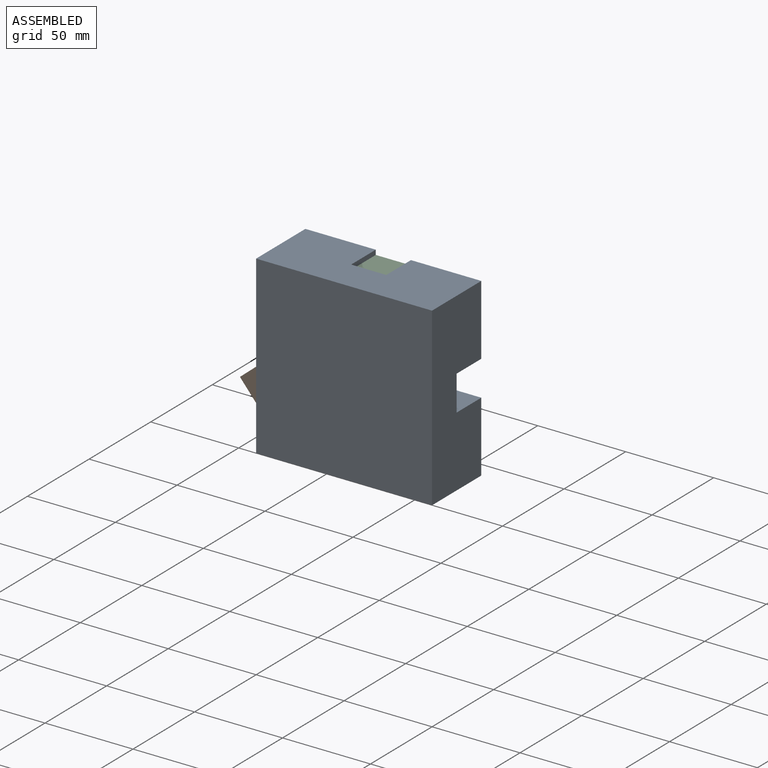
[diagram: assembled view]
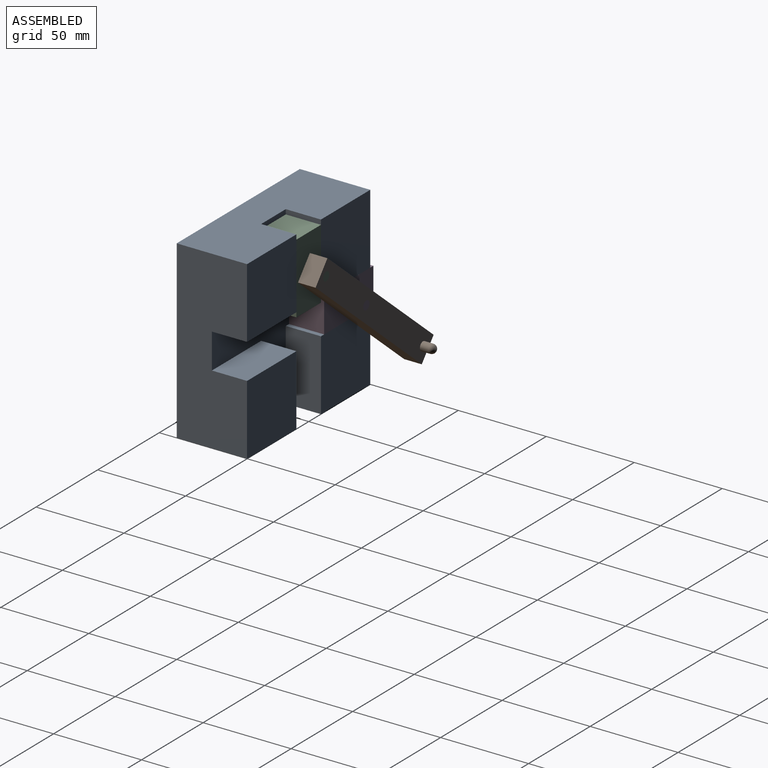
[diagram: assembled view, second angle]
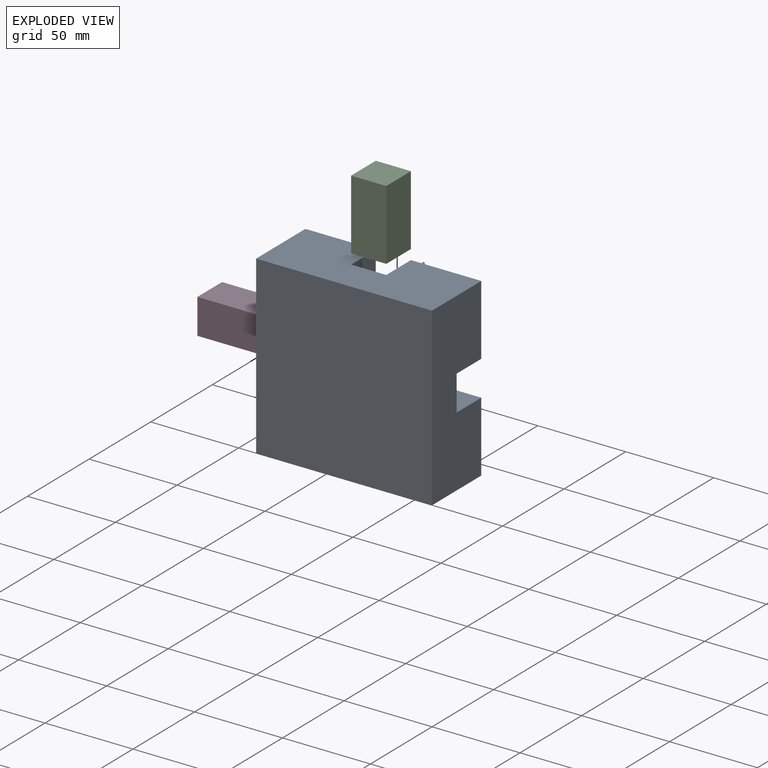
[diagram: exploded view]
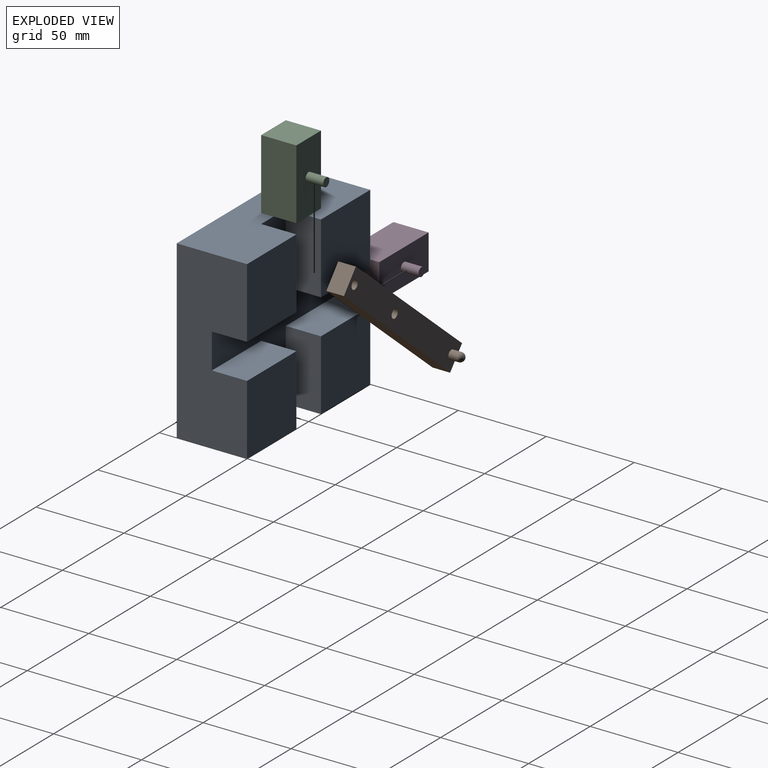
[diagram: exploded view, second angle]
ASSEMBLY  parts=4 mates=4
PART A: 18 faces, bbox 100x100x40 mm
  f0: plane 40x40mm, normal (0,0,1), area 1600mm2, adj f3,f4,f9,f10
  f1: plane 40x40mm, normal (0,0,1), area 1600mm2, adj f3,f5,f11,f12
  f2: plane 40x40mm, normal (0,0,1), area 1600mm2, adj f5,f6,f13,f14
  f3: plane 100x40mm, normal (0,1,0), area 3600mm2, adj f0,f1,f4,f5,f8,f10,f11,f17
  f4: plane 100x40mm, normal (1,0,0), area 3600mm2, adj f0,f3,f6,f7,f8,f9,f16,f17
  f5: plane 100x40mm, normal (-1,0,0), area 3600mm2, adj f1,f2,f3,f6,f8,f12,f13,f17
  f6: plane 100x40mm, normal (0,-1,0), area 3600mm2, adj f2,f4,f5,f7,f8,f14,f15,f17
  f7: plane 40x40mm, normal (0,0,1), area 1600mm2, adj f4,f6,f15,f16
  f8: plane 100x100mm, normal (0,0,-1), area 10000mm2, adj f3,f4,f5,f6
  f9: plane 40x20mm, normal (0,-1,0), area 800mm2, adj f0,f4,f10,f17
  f10: plane 40x20mm, normal (-1,0,0), area 800mm2, adj f0,f3,f9,f17
  f11: plane 40x20mm, normal (1,0,0), area 800mm2, adj f1,f3,f12,f17
  f12: plane 40x20mm, normal (0,-1,0), area 800mm2, adj f1,f5,f11,f17
  f13: plane 40x20mm, normal (0,1,0), area 800mm2, adj f2,f5,f14,f17
  f14: plane 40x20mm, normal (1,0,0), area 800mm2, adj f2,f6,f13,f17
  f15: plane 40x20mm, normal (-1,0,0), area 800mm2, adj f6,f7,f16,f17
  f16: plane 40x20mm, normal (0,1,0), area 800mm2, adj f4,f7,f15,f17
  f17: plane 100x100mm, normal (0,0,1), area 3600mm2, adj f3,f4,f5,f6,f9,f10,f11,f12
PART B: 10 faces, bbox 112.5x15x17.5 mm
  f0: plane 112.5x10mm, normal (0,1,0), area 1125mm2, adj f2,f3,f4,f7
  f1: plane 112.5x10mm, normal (0,-1,0), area 1125mm2, adj f2,f3,f4,f7
  f2: plane 15x10mm, normal (1,0,0), area 150mm2, adj f0,f1,f3,f4
  f3: plane 112.5x15mm, normal (0,0,1), area 1648.2mm2, adj f0,f1,f2,f5,f6,f7
  f4: plane 112.5x15mm, normal (0,0,-1), area 1628.6mm2, adj f0,f1,f2,f5,f6,f7,f8
  f5: cylinder r=2.5mm len=10mm, axis (0,0,1), area 157.1mm2, adj f3,f4
  f6: cylinder r=2.5mm len=10mm, axis (0,0,1), area 157.1mm2, adj f3,f4
  f7: plane 15x10mm, normal (-1,0,0), area 150mm2, adj f0,f1,f3,f4
  f8: cylinder r=2.5mm len=5mm, axis (0,0,1), area 78.5mm2, adj f4,f9
  f9: sphere r=2.5mm, area 39.3mm2, adj f8
PART C: 8 faces, bbox 40x20x30 mm
  f0: plane 40x20mm, normal (0,0,1), area 780.4mm2, adj f1,f3,f4,f5,f6
  f1: plane 20x20mm, normal (-1,0,0), area 400mm2, adj f0,f2,f4,f5
  f2: plane 40x20mm, normal (0,0,-1), area 800mm2, adj f1,f3,f4,f5
  f3: plane 20x20mm, normal (1,0,0), area 400mm2, adj f0,f2,f4,f5
  f4: plane 40x20mm, normal (0,-1,0), area 800mm2, adj f0,f1,f2,f3
  f5: plane 40x20mm, normal (0,1,0), area 800mm2, adj f0,f1,f2,f3
  f6: cylinder r=2.5mm len=10mm, axis (0,0,-1), area 157.1mm2, adj f0,f7
  f7: plane 5x5mm, normal (0,0,1), area 19.6mm2, adj f6
PART D: same geometry as C
PLACE A rot(axis=(-0.58,0.58,0.58),120deg) t=(-37.22,0,21.65)mm
PLACE B rot(axis=(0.89,-0.32,0.32),96.7deg) t=(-34.08,50,82.08)mm
PLACE C rot(axis=(-0.58,-0.58,-0.58),120deg) t=(-40,45.22,78.97)mm
PLACE D rot(axis=(-1,0,0),90deg) t=(-80.9,45.22,40)mm
MATE revolute B.f6 <-> C.f6  axis (0,1,0) through (-50,50,77.3)mm
MATE slider C.f3 <-> A.f5  axis (0,0,1) through (-40,40,97.3)mm
MATE slider D.f3 <-> A.f3  axis (1,0,0) through (-62.57,20,40)mm
MATE revolute B.f5 <-> D.f6  axis (0,1,0) through (-82.57,50,50)mm
